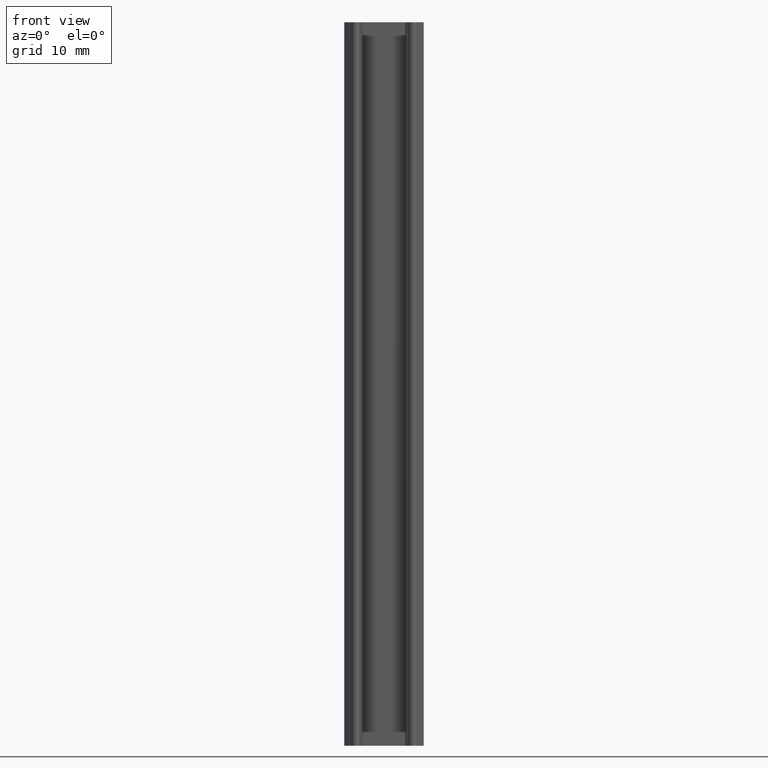
[diagram: clean part render]
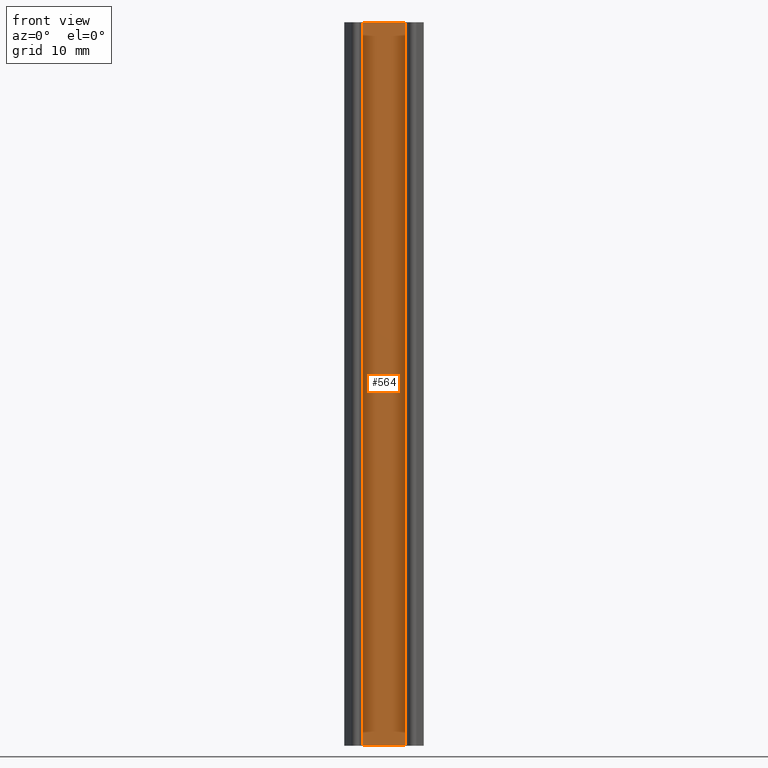
[diagram: same view with one face highlighted and labeled with its STEP entity id]
A machine part, front view. The second image highlights one B-rep face of the part: STEP entity #564.
In plain terms, the highlighted planar face has unit normal (0, -1, 0).
Its self-contained STEP definition (entity closure, byte-faithful):
#43=FACE_OUTER_BOUND('',#73,.T.);
#73=EDGE_LOOP('',(#378,#379,#380,#381));
#105=LINE('',#834,#171);
#106=LINE('',#837,#172);
#107=LINE('',#839,#173);
#108=LINE('',#840,#174);
#171=VECTOR('',#668,10.);
#172=VECTOR('',#671,10.);
#173=VECTOR('',#672,10.);
#174=VECTOR('',#673,10.);
#234=VERTEX_POINT('',#827);
#237=VERTEX_POINT('',#832);
#238=VERTEX_POINT('',#836);
#239=VERTEX_POINT('',#838);
#293=EDGE_CURVE('',#234,#237,#105,.T.);
#294=EDGE_CURVE('',#238,#234,#106,.T.);
#295=EDGE_CURVE('',#239,#237,#107,.T.);
#296=EDGE_CURVE('',#238,#239,#108,.T.);
#378=ORIENTED_EDGE('',*,*,#294,.T.);
#379=ORIENTED_EDGE('',*,*,#293,.T.);
#380=ORIENTED_EDGE('',*,*,#295,.F.);
#381=ORIENTED_EDGE('',*,*,#296,.F.);
#543=PLANE('',#614);
#564=ADVANCED_FACE('',(#43),#543,.T.);
#614=AXIS2_PLACEMENT_3D('',#835,#669,#670);
#668=DIRECTION('',(0.,0.,1.));
#669=DIRECTION('center_axis',(0.,-1.,0.));
#670=DIRECTION('ref_axis',(1.,0.,0.));
#671=DIRECTION('',(1.,0.,0.));
#672=DIRECTION('',(1.,0.,0.));
#673=DIRECTION('',(0.,0.,1.));
#827=CARTESIAN_POINT('',(2.90294113519095,0.,0.));
#832=CARTESIAN_POINT('',(2.90294113519095,0.,100.));
#834=CARTESIAN_POINT('',(2.90294113519095,0.,0.));
#835=CARTESIAN_POINT('Origin',(-2.90294113519095,0.,0.));
#836=CARTESIAN_POINT('',(-2.90294113519095,0.,0.));
#837=CARTESIAN_POINT('',(-2.90294113519095,0.,0.));
#838=CARTESIAN_POINT('',(-2.90294113519095,0.,100.));
#839=CARTESIAN_POINT('',(-2.90294113519095,0.,100.));
#840=CARTESIAN_POINT('',(-2.90294113519095,0.,0.));